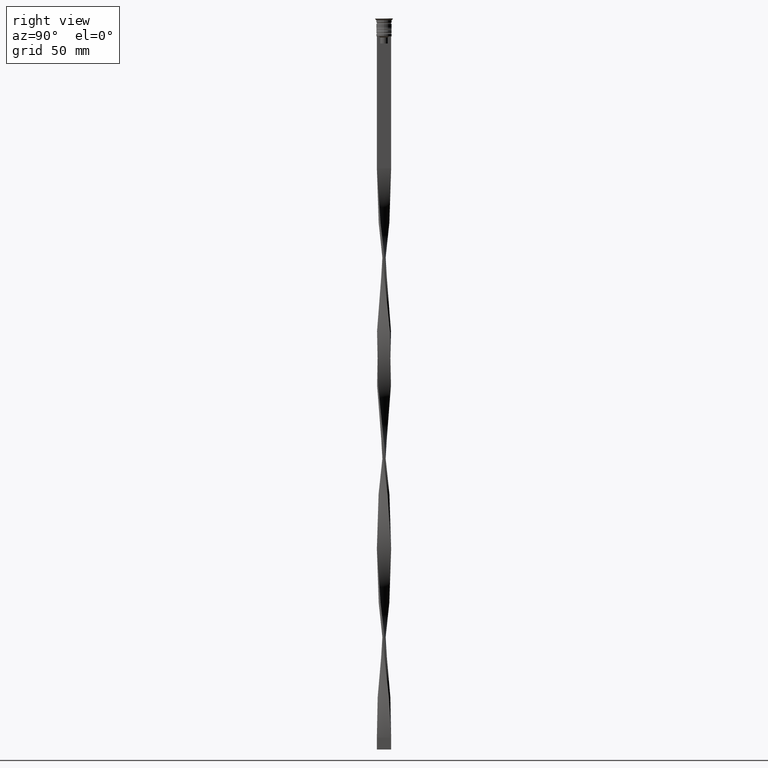
[diagram: clean part render]
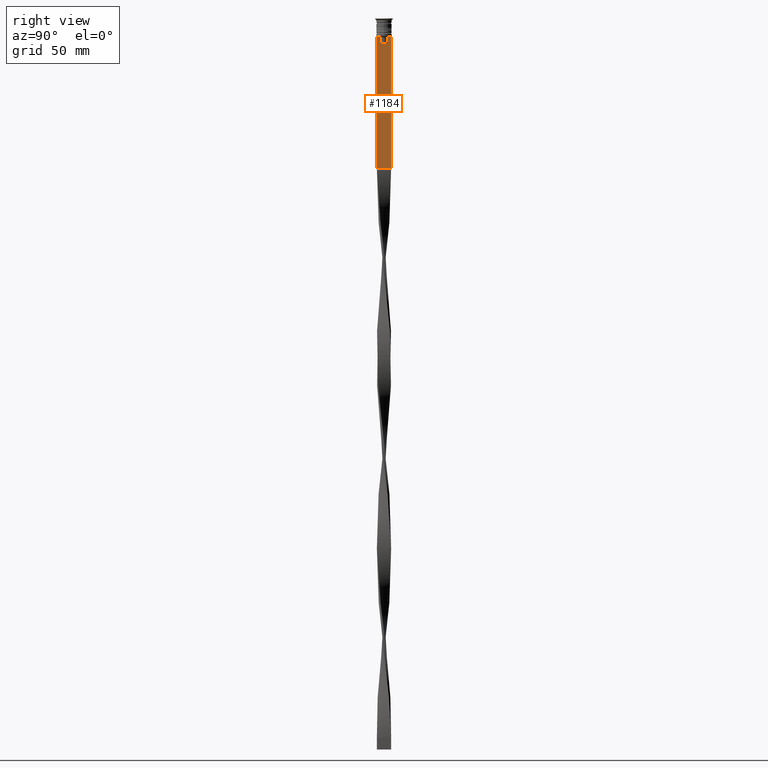
[diagram: same view with one face highlighted and labeled with its STEP entity id]
A machine part, right view. The second image highlights one B-rep face of the part: STEP entity #1184.
In plain terms, the highlighted planar face has unit normal (-1, 0, 0).
Its self-contained STEP definition (entity closure, byte-faithful):
#107 = EDGE_CURVE ( 'NONE', #1065, #3533, #1972, .T. ) ;
#127 = DIRECTION ( 'NONE',  ( 0.000000000000000000, -1.000000000000000000, 0.000000000000000000 ) ) ;
#179 = CARTESIAN_POINT ( 'NONE',  ( 0.4999999999999998890, 1.572418519351642452, -8.000000000000000000 ) ) ;
#252 = DIRECTION ( 'NONE',  ( 0.000000000000000000, 0.000000000000000000, -1.000000000000000000 ) ) ;
#328 = EDGE_CURVE ( 'NONE', #723, #403, #3271, .T. ) ;
#387 = DIRECTION ( 'NONE',  ( -1.000000000000000000, 0.000000000000000000, 0.000000000000000000 ) ) ;
#403 = VERTEX_POINT ( 'NONE', #1797 ) ;
#424 = LINE ( 'NONE', #1629, #3665 ) ;
#432 = VERTEX_POINT ( 'NONE', #2964 ) ;
#483 = AXIS2_PLACEMENT_3D ( 'NONE', #3084, #387, #3609 ) ;
#545 = DIRECTION ( 'NONE',  ( 0.000000000000000000, -1.000000000000000000, 0.000000000000000000 ) ) ;
#595 = CARTESIAN_POINT ( 'NONE',  ( 0.4999999999999998890, 3.000000000000000000, -7.500000000000000000 ) ) ;
#651 = DIRECTION ( 'NONE',  ( 0.000000000000000000, 1.000000000000000000, 0.000000000000000000 ) ) ;
#722 = VECTOR ( 'NONE', #252, 1000.000000000000000 ) ;
#723 = VERTEX_POINT ( 'NONE', #3306 ) ;
#727 = EDGE_CURVE ( 'NONE', #1620, #3533, #950, .T. ) ;
#728 = CARTESIAN_POINT ( 'NONE',  ( 0.4999999999999998890, 2.091052366632653481, -7.500000000000000000 ) ) ;
#794 = CARTESIAN_POINT ( 'NONE',  ( 0.4999999999999998890, -1.572418519351642452, 0.000000000000000000 ) ) ;
#848 = B_SPLINE_CURVE_WITH_KNOTS ( 'NONE', 3,
 ( #3095, #2802, #1315, #2215 ),
 .UNSPECIFIED., .F., .F.,
 ( 4, 4 ),
 ( 0.008356915209744729747, 0.009073319521387651632 ),
 .UNSPECIFIED. ) ;
#860 = CARTESIAN_POINT ( 'NONE',  ( 0.4999999999999998890, 1.572418519351642452, 0.000000000000000000 ) ) ;
#911 = FACE_OUTER_BOUND ( 'NONE', #2745, .T. ) ;
#947 = DIRECTION ( 'NONE',  ( 0.000000000000000000, -1.000000000000000000, 0.000000000000000000 ) ) ;
#950 = LINE ( 'NONE', #2139, #2910 ) ;
#1065 = VERTEX_POINT ( 'NONE', #595 ) ;
#1134 = ORIENTED_EDGE ( 'NONE', *, *, #727, .T. ) ;
#1163 = VECTOR ( 'NONE', #545, 1000.000000000000000 ) ;
#1184 = ADVANCED_FACE ( 'NONE', ( #911 ), #3663, .F. ) ;
#1189 = DIRECTION ( 'NONE',  ( 0.000000000000000000, 0.000000000000000000, -1.000000000000000000 ) ) ;
#1315 = CARTESIAN_POINT ( 'NONE',  ( 0.4999999999999998890, -1.918909712772151721, -7.667422931978337353 ) ) ;
#1362 = CARTESIAN_POINT ( 'NONE',  ( 0.4999999999999998890, -3.000000000000000000, -7.500000000000000000 ) ) ;
#1393 = CARTESIAN_POINT ( 'NONE',  ( 0.4999999999999998890, -3.000000000000000000, -63.00000000000000000 ) ) ;
#1446 = EDGE_CURVE ( 'NONE', #403, #1669, #424, .T. ) ;
#1620 = VERTEX_POINT ( 'NONE', #1393 ) ;
#1629 = CARTESIAN_POINT ( 'NONE',  ( 0.4999999999999998890, 1.650000000000003464, -10.49999999999999822 ) ) ;
#1636 = ORIENTED_EDGE ( 'NONE', *, *, #3691, .T. ) ;
#1669 = VERTEX_POINT ( 'NONE', #3521 ) ;
#1673 = VECTOR ( 'NONE', #947, 1000.000000000000000 ) ;
#1797 = CARTESIAN_POINT ( 'NONE',  ( 0.4999999999999998890, 1.572418519351642452, -10.49999999999999822 ) ) ;
#1972 = LINE ( 'NONE', #3528, #722 ) ;
#2017 = EDGE_CURVE ( 'NONE', #2028, #2657, #3257, .T. ) ;
#2028 = VERTEX_POINT ( 'NONE', #3274 ) ;
#2102 = VECTOR ( 'NONE', #3175, 1000.000000000000000 ) ;
#2139 = CARTESIAN_POINT ( 'NONE',  ( 0.4999999999999998890, -3.000000000000000000, -63.00000000000000000 ) ) ;
#2215 = CARTESIAN_POINT ( 'NONE',  ( 0.4999999999999998890, -2.091052366632653481, -7.500000000000000000 ) ) ;
#2227 = ORIENTED_EDGE ( 'NONE', *, *, #2644, .T. ) ;
#2253 = CARTESIAN_POINT ( 'NONE',  ( 0.4999999999999998890, 1.918907889994530436, -7.667424704779945976 ) ) ;
#2330 = CARTESIAN_POINT ( 'NONE',  ( 0.4999999999999998890, 3.000000000000000000, -63.00000000000000000 ) ) ;
#2410 = LINE ( 'NONE', #3636, #1673 ) ;
#2510 = ORIENTED_EDGE ( 'NONE', *, *, #328, .T. ) ;
#2560 = DIRECTION ( 'NONE',  ( -0.000000000000000000, -0.000000000000000000, 1.000000000000000000 ) ) ;
#2644 = EDGE_CURVE ( 'NONE', #1669, #432, #3683, .T. ) ;
#2657 = VERTEX_POINT ( 'NONE', #1362 ) ;
#2745 = EDGE_LOOP ( 'NONE', ( #1636, #3246, #2510, #3478, #2227, #3553, #3312, #3638, #1134, #3849 ) ) ;
#2802 = CARTESIAN_POINT ( 'NONE',  ( 0.4999999999999998890, -1.746240429054158660, -7.834351036433149673 ) ) ;
#2854 = EDGE_CURVE ( 'NONE', #2657, #1620, #3545, .T. ) ;
#2910 = VECTOR ( 'NONE', #651, 1000.000000000000000 ) ;
#2964 = CARTESIAN_POINT ( 'NONE',  ( 0.4999999999999998890, -1.572418519351642452, -8.000000000000000000 ) ) ;
#3084 = CARTESIAN_POINT ( 'NONE',  ( 0.4999999999999998890, -3.000000000000000000, -1.417237469701779329 ) ) ;
#3095 = CARTESIAN_POINT ( 'NONE',  ( 0.4999999999999998890, -1.572418519351642452, -8.000000000000000000 ) ) ;
#3115 = CARTESIAN_POINT ( 'NONE',  ( 0.4999999999999998890, 2.091052366632653481, -7.500000000000000000 ) ) ;
#3175 = DIRECTION ( 'NONE',  ( 0.000000000000000000, 0.000000000000000000, -1.000000000000000000 ) ) ;
#3208 = CARTESIAN_POINT ( 'NONE',  ( 0.4999999999999998890, -3.000000000000000000, -1.417237469701779329 ) ) ;
#3246 = ORIENTED_EDGE ( 'NONE', *, *, #3309, .T. ) ;
#3257 = LINE ( 'NONE', #3511, #1163 ) ;
#3268 = VERTEX_POINT ( 'NONE', #728 ) ;
#3271 = LINE ( 'NONE', #860, #3468 ) ;
#3274 = CARTESIAN_POINT ( 'NONE',  ( 0.4999999999999998890, -2.091052366632653481, -7.500000000000000000 ) ) ;
#3281 = VECTOR ( 'NONE', #2560, 1000.000000000000000 ) ;
#3306 = CARTESIAN_POINT ( 'NONE',  ( 0.4999999999999998890, 1.572418519351642452, -8.000000000000000000 ) ) ;
#3309 = EDGE_CURVE ( 'NONE', #3268, #723, #3690, .T. ) ;
#3312 = ORIENTED_EDGE ( 'NONE', *, *, #2017, .T. ) ;
#3331 = EDGE_CURVE ( 'NONE', #432, #2028, #848, .T. ) ;
#3468 = VECTOR ( 'NONE', #1189, 1000.000000000000000 ) ;
#3478 = ORIENTED_EDGE ( 'NONE', *, *, #1446, .T. ) ;
#3511 = CARTESIAN_POINT ( 'NONE',  ( 0.4999999999999998890, -3.000000000000000000, -7.500000000000000000 ) ) ;
#3521 = CARTESIAN_POINT ( 'NONE',  ( 0.4999999999999998890, -1.572418519351642452, -10.49999999999999822 ) ) ;
#3528 = CARTESIAN_POINT ( 'NONE',  ( 0.4999999999999998890, 3.000000000000000000, -1.417237469701779329 ) ) ;
#3533 = VERTEX_POINT ( 'NONE', #2330 ) ;
#3545 = LINE ( 'NONE', #3208, #2102 ) ;
#3553 = ORIENTED_EDGE ( 'NONE', *, *, #3331, .T. ) ;
#3609 = DIRECTION ( 'NONE',  ( 0.000000000000000000, 0.000000000000000000, 1.000000000000000000 ) ) ;
#3636 = CARTESIAN_POINT ( 'NONE',  ( 0.4999999999999998890, -3.000000000000000000, -7.500000000000000000 ) ) ;
#3638 = ORIENTED_EDGE ( 'NONE', *, *, #2854, .T. ) ;
#3663 = PLANE ( 'NONE',  #483 ) ;
#3665 = VECTOR ( 'NONE', #127, 1000.000000000000000 ) ;
#3678 = CARTESIAN_POINT ( 'NONE',  ( 0.4999999999999998890, 1.746261636039131870, -7.834330826581080487 ) ) ;
#3683 = LINE ( 'NONE', #794, #3281 ) ;
#3690 = B_SPLINE_CURVE_WITH_KNOTS ( 'NONE', 3,
 ( #3115, #2253, #3678, #179 ),
 .UNSPECIFIED., .F., .F.,
 ( 4, 4 ),
 ( 0.003696428037903523069, 0.004416830248125226156 ),
 .UNSPECIFIED. ) ;
#3691 = EDGE_CURVE ( 'NONE', #1065, #3268, #2410, .T. ) ;
#3849 = ORIENTED_EDGE ( 'NONE', *, *, #107, .F. ) ;